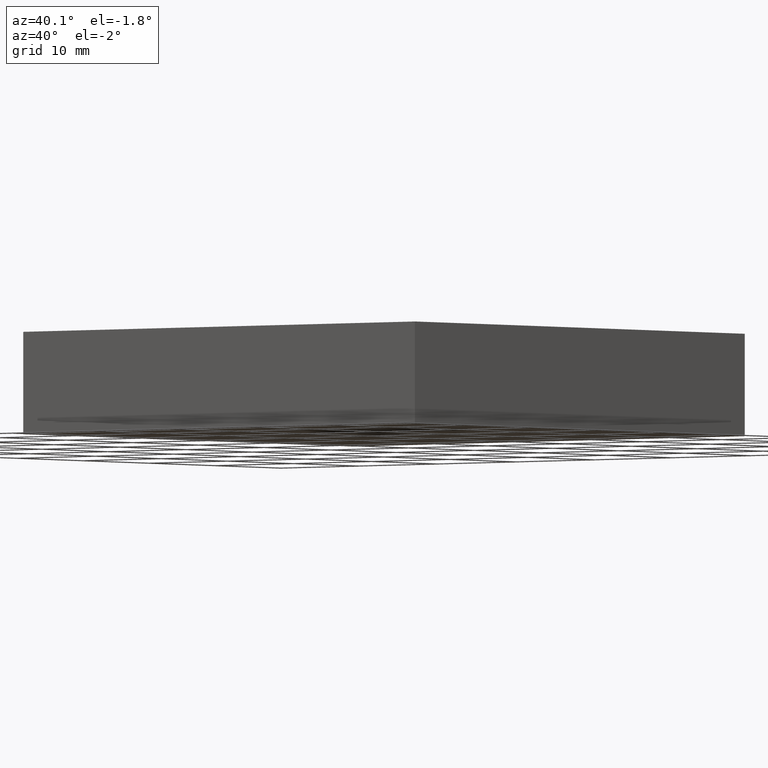
[diagram: clean part render]
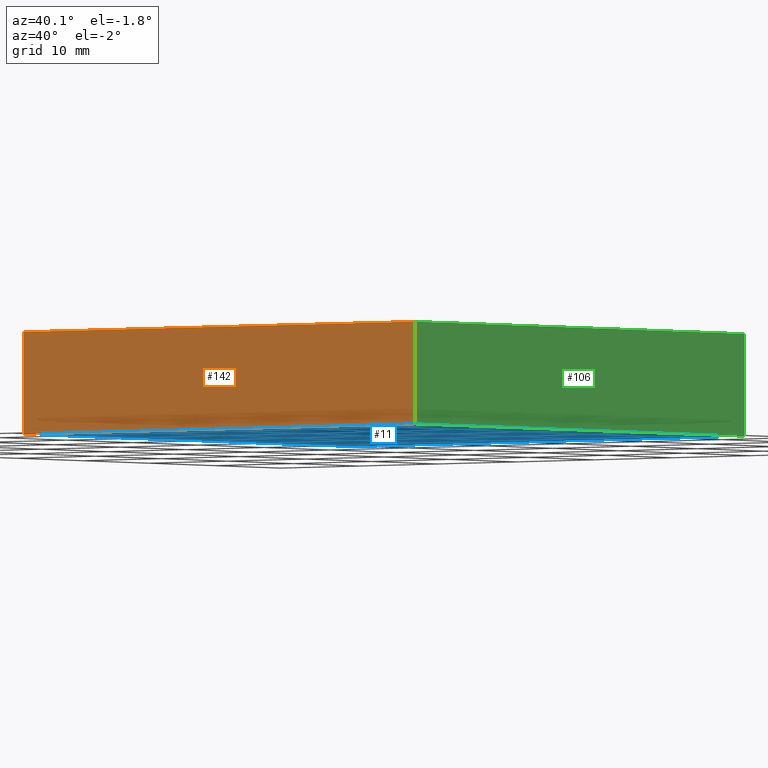
[diagram: same view with three faces highlighted in distinct colors, each labeled with its STEP entity id]
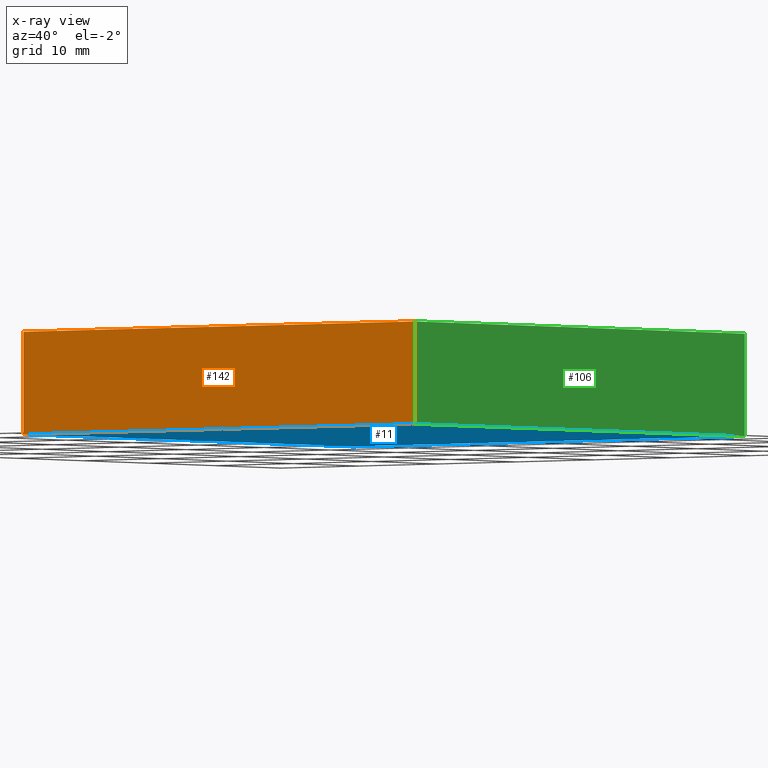
[diagram: x-ray of the same camera — body ghosted, the three highlighted faces saturated]
A machine part, auxiliary view with three faces highlighted in distinct colors.
The next image is the same camera in x-ray (body ghosted, the three faces saturated) — at least one of them is partly hidden behind the body in this view.
Their STEP definitions:

[orange] entity #142 — the highlighted planar face has unit normal (0, 1, -0).
#1 = VECTOR ( 'NONE', #160, 1000.000000000000000 ) ;
#7 = DIRECTION ( 'NONE',  ( -0.0000000000000000000, -0.0000000000000000000, -1.000000000000000000 ) ) ;
#10 = PLANE ( 'NONE',  #51 ) ;
#14 = EDGE_CURVE ( 'NONE', #162, #15, #88, .T. ) ;
#15 = VERTEX_POINT ( 'NONE', #192 ) ;
#23 = DIRECTION ( 'NONE',  ( 1.000000000000000000, -0.0000000000000000000, -0.0000000000000000000 ) ) ;
#26 = VECTOR ( 'NONE', #7, 1000.000000000000000 ) ;
#33 = CARTESIAN_POINT ( 'NONE',  ( 466.6175434576859400, 129.3843025342640100, 10.00000000000000000 ) ) ;
#45 = FACE_OUTER_BOUND ( 'NONE', #124, .T. ) ;
#47 = ORIENTED_EDGE ( 'NONE', *, *, #118, .T. ) ;
#50 = LINE ( 'NONE', #103, #26 ) ;
#51 = AXIS2_PLACEMENT_3D ( 'NONE', #182, #91, #121 ) ;
#54 = CARTESIAN_POINT ( 'NONE',  ( 466.6175434576859400, 129.3843025342640100, 0.0000000000000000000 ) ) ;
#55 = CARTESIAN_POINT ( 'NONE',  ( 416.6175434576858800, 129.3843025342640100, 10.00000000000000000 ) ) ;
#59 = CARTESIAN_POINT ( 'NONE',  ( 416.6175434576858800, 129.3843025342640100, 0.0000000000000000000 ) ) ;
#77 = VERTEX_POINT ( 'NONE', #59 ) ;
#88 = LINE ( 'NONE', #33, #1 ) ;
#91 = DIRECTION ( 'NONE',  ( 0.0000000000000000000, 1.000000000000000000, -0.0000000000000000000 ) ) ;
#92 = LINE ( 'NONE', #105, #135 ) ;
#95 = ORIENTED_EDGE ( 'NONE', *, *, #133, .T. ) ;
#99 = ORIENTED_EDGE ( 'NONE', *, *, #14, .F. ) ;
#101 = VECTOR ( 'NONE', #23, 1000.000000000000000 ) ;
#103 = CARTESIAN_POINT ( 'NONE',  ( 466.6175434576859400, 129.3843025342640100, 10.00000000000000000 ) ) ;
#105 = CARTESIAN_POINT ( 'NONE',  ( 416.6175434576858800, 129.3843025342640100, 10.00000000000000000 ) ) ;
#118 = EDGE_CURVE ( 'NONE', #77, #157, #201, .T. ) ;
#121 = DIRECTION ( 'NONE',  ( 0.0000000000000000000, 0.0000000000000000000, 1.000000000000000000 ) ) ;
#124 = EDGE_LOOP ( 'NONE', ( #47, #179, #99, #95 ) ) ;
#133 = EDGE_CURVE ( 'NONE', #162, #77, #92, .T. ) ;
#135 = VECTOR ( 'NONE', #184, 1000.000000000000000 ) ;
#142 = ADVANCED_FACE ( 'NONE', ( #45 ), #10, .F. ) ;
#153 = CARTESIAN_POINT ( 'NONE',  ( 466.6175434576859400, 129.3843025342640100, 0.0000000000000000000 ) ) ;
#157 = VERTEX_POINT ( 'NONE', #153 ) ;
#160 = DIRECTION ( 'NONE',  ( 1.000000000000000000, -0.0000000000000000000, -0.0000000000000000000 ) ) ;
#162 = VERTEX_POINT ( 'NONE', #55 ) ;
#179 = ORIENTED_EDGE ( 'NONE', *, *, #181, .F. ) ;
#181 = EDGE_CURVE ( 'NONE', #15, #157, #50, .T. ) ;
#182 = CARTESIAN_POINT ( 'NONE',  ( 466.6175434576859400, 129.3843025342640100, 10.00000000000000000 ) ) ;
#184 = DIRECTION ( 'NONE',  ( -0.0000000000000000000, -0.0000000000000000000, -1.000000000000000000 ) ) ;
#192 = CARTESIAN_POINT ( 'NONE',  ( 466.6175434576859400, 129.3843025342640100, 10.00000000000000000 ) ) ;
#201 = LINE ( 'NONE', #54, #101 ) ;

[blue] entity #11 — the highlighted planar face has unit normal (0, 0, -1).
#4 = VERTEX_POINT ( 'NONE', #87 ) ;
#5 = DIRECTION ( 'NONE',  ( -1.000000000000000000, 0.0000000000000000000, -0.0000000000000000000 ) ) ;
#11 = ADVANCED_FACE ( 'NONE', ( #109 ), #191, .T. ) ;
#13 = VECTOR ( 'NONE', #49, 1000.000000000000000 ) ;
#17 = CARTESIAN_POINT ( 'NONE',  ( 416.6175434576858800, 179.3843025342640100, 0.0000000000000000000 ) ) ;
#18 = DIRECTION ( 'NONE',  ( -1.000000000000000000, -0.0000000000000000000, -0.0000000000000000000 ) ) ;
#23 = DIRECTION ( 'NONE',  ( 1.000000000000000000, -0.0000000000000000000, -0.0000000000000000000 ) ) ;
#25 = EDGE_CURVE ( 'NONE', #4, #32, #186, .T. ) ;
#28 = EDGE_LOOP ( 'NONE', ( #155, #137, #68, #146 ) ) ;
#32 = VERTEX_POINT ( 'NONE', #131 ) ;
#36 = AXIS2_PLACEMENT_3D ( 'NONE', #84, #189, #5 ) ;
#38 = VECTOR ( 'NONE', #18, 1000.000000000000000 ) ;
#39 = EDGE_CURVE ( 'NONE', #32, #77, #140, .T. ) ;
#49 = DIRECTION ( 'NONE',  ( -0.0000000000000000000, -1.000000000000000000, -0.0000000000000000000 ) ) ;
#54 = CARTESIAN_POINT ( 'NONE',  ( 466.6175434576859400, 129.3843025342640100, 0.0000000000000000000 ) ) ;
#59 = CARTESIAN_POINT ( 'NONE',  ( 416.6175434576858800, 129.3843025342640100, 0.0000000000000000000 ) ) ;
#68 = ORIENTED_EDGE ( 'NONE', *, *, #25, .F. ) ;
#70 = DIRECTION ( 'NONE',  ( -0.0000000000000000000, 1.000000000000000000, -0.0000000000000000000 ) ) ;
#71 = VECTOR ( 'NONE', #70, 1000.000000000000000 ) ;
#77 = VERTEX_POINT ( 'NONE', #59 ) ;
#84 = CARTESIAN_POINT ( 'NONE',  ( 0.0000000000000000000, 0.0000000000000000000, 0.0000000000000000000 ) ) ;
#87 = CARTESIAN_POINT ( 'NONE',  ( 466.6175434576859400, 179.3843025342640100, 0.0000000000000000000 ) ) ;
#101 = VECTOR ( 'NONE', #23, 1000.000000000000000 ) ;
#109 = FACE_OUTER_BOUND ( 'NONE', #28, .T. ) ;
#115 = CARTESIAN_POINT ( 'NONE',  ( 416.6175434576858800, 154.3843025342640100, 0.0000000000000000000 ) ) ;
#118 = EDGE_CURVE ( 'NONE', #77, #157, #201, .T. ) ;
#128 = LINE ( 'NONE', #163, #71 ) ;
#131 = CARTESIAN_POINT ( 'NONE',  ( 416.6175434576858800, 179.3843025342640100, 0.0000000000000000000 ) ) ;
#137 = ORIENTED_EDGE ( 'NONE', *, *, #39, .F. ) ;
#140 = LINE ( 'NONE', #115, #13 ) ;
#146 = ORIENTED_EDGE ( 'NONE', *, *, #175, .F. ) ;
#153 = CARTESIAN_POINT ( 'NONE',  ( 466.6175434576859400, 129.3843025342640100, 0.0000000000000000000 ) ) ;
#155 = ORIENTED_EDGE ( 'NONE', *, *, #118, .F. ) ;
#157 = VERTEX_POINT ( 'NONE', #153 ) ;
#163 = CARTESIAN_POINT ( 'NONE',  ( 466.6175434576859400, 179.3843025342640100, 0.0000000000000000000 ) ) ;
#175 = EDGE_CURVE ( 'NONE', #157, #4, #128, .T. ) ;
#186 = LINE ( 'NONE', #17, #38 ) ;
#189 = DIRECTION ( 'NONE',  ( 0.0000000000000000000, 0.0000000000000000000, -1.000000000000000000 ) ) ;
#191 = PLANE ( 'NONE',  #36 ) ;
#201 = LINE ( 'NONE', #54, #101 ) ;

[green] entity #106 — the highlighted planar face has unit normal (-1, 0, 0).
#4 = VERTEX_POINT ( 'NONE', #87 ) ;
#6 = DIRECTION ( 'NONE',  ( -0.0000000000000000000, -0.0000000000000000000, -1.000000000000000000 ) ) ;
#7 = DIRECTION ( 'NONE',  ( -0.0000000000000000000, -0.0000000000000000000, -1.000000000000000000 ) ) ;
#15 = VERTEX_POINT ( 'NONE', #192 ) ;
#20 = PLANE ( 'NONE',  #44 ) ;
#26 = VECTOR ( 'NONE', #7, 1000.000000000000000 ) ;
#43 = ORIENTED_EDGE ( 'NONE', *, *, #181, .T. ) ;
#44 = AXIS2_PLACEMENT_3D ( 'NONE', #132, #116, #167 ) ;
#50 = LINE ( 'NONE', #103, #26 ) ;
#63 = FACE_OUTER_BOUND ( 'NONE', #177, .T. ) ;
#66 = LINE ( 'NONE', #73, #119 ) ;
#70 = DIRECTION ( 'NONE',  ( -0.0000000000000000000, 1.000000000000000000, -0.0000000000000000000 ) ) ;
#71 = VECTOR ( 'NONE', #70, 1000.000000000000000 ) ;
#73 = CARTESIAN_POINT ( 'NONE',  ( 466.6175434576859400, 179.3843025342640100, 10.00000000000000000 ) ) ;
#87 = CARTESIAN_POINT ( 'NONE',  ( 466.6175434576859400, 179.3843025342640100, 0.0000000000000000000 ) ) ;
#103 = CARTESIAN_POINT ( 'NONE',  ( 466.6175434576859400, 129.3843025342640100, 10.00000000000000000 ) ) ;
#106 = ADVANCED_FACE ( 'NONE', ( #63 ), #20, .F. ) ;
#116 = DIRECTION ( 'NONE',  ( -1.000000000000000000, 0.0000000000000000000, 0.0000000000000000000 ) ) ;
#119 = VECTOR ( 'NONE', #161, 1000.000000000000000 ) ;
#126 = ORIENTED_EDGE ( 'NONE', *, *, #175, .T. ) ;
#128 = LINE ( 'NONE', #163, #71 ) ;
#129 = ORIENTED_EDGE ( 'NONE', *, *, #173, .F. ) ;
#132 = CARTESIAN_POINT ( 'NONE',  ( 466.6175434576859400, 179.3843025342640100, 10.00000000000000000 ) ) ;
#138 = CARTESIAN_POINT ( 'NONE',  ( 466.6175434576859400, 179.3843025342640100, 10.00000000000000000 ) ) ;
#144 = VECTOR ( 'NONE', #6, 1000.000000000000000 ) ;
#147 = EDGE_CURVE ( 'NONE', #15, #202, #66, .T. ) ;
#153 = CARTESIAN_POINT ( 'NONE',  ( 466.6175434576859400, 129.3843025342640100, 0.0000000000000000000 ) ) ;
#156 = LINE ( 'NONE', #138, #144 ) ;
#157 = VERTEX_POINT ( 'NONE', #153 ) ;
#161 = DIRECTION ( 'NONE',  ( -0.0000000000000000000, 1.000000000000000000, -0.0000000000000000000 ) ) ;
#163 = CARTESIAN_POINT ( 'NONE',  ( 466.6175434576859400, 179.3843025342640100, 0.0000000000000000000 ) ) ;
#167 = DIRECTION ( 'NONE',  ( 0.0000000000000000000, 0.0000000000000000000, 1.000000000000000000 ) ) ;
#171 = ORIENTED_EDGE ( 'NONE', *, *, #147, .F. ) ;
#173 = EDGE_CURVE ( 'NONE', #202, #4, #156, .T. ) ;
#175 = EDGE_CURVE ( 'NONE', #157, #4, #128, .T. ) ;
#177 = EDGE_LOOP ( 'NONE', ( #126, #129, #171, #43 ) ) ;
#181 = EDGE_CURVE ( 'NONE', #15, #157, #50, .T. ) ;
#192 = CARTESIAN_POINT ( 'NONE',  ( 466.6175434576859400, 129.3843025342640100, 10.00000000000000000 ) ) ;
#200 = CARTESIAN_POINT ( 'NONE',  ( 466.6175434576859400, 179.3843025342640100, 10.00000000000000000 ) ) ;
#202 = VERTEX_POINT ( 'NONE', #200 ) ;